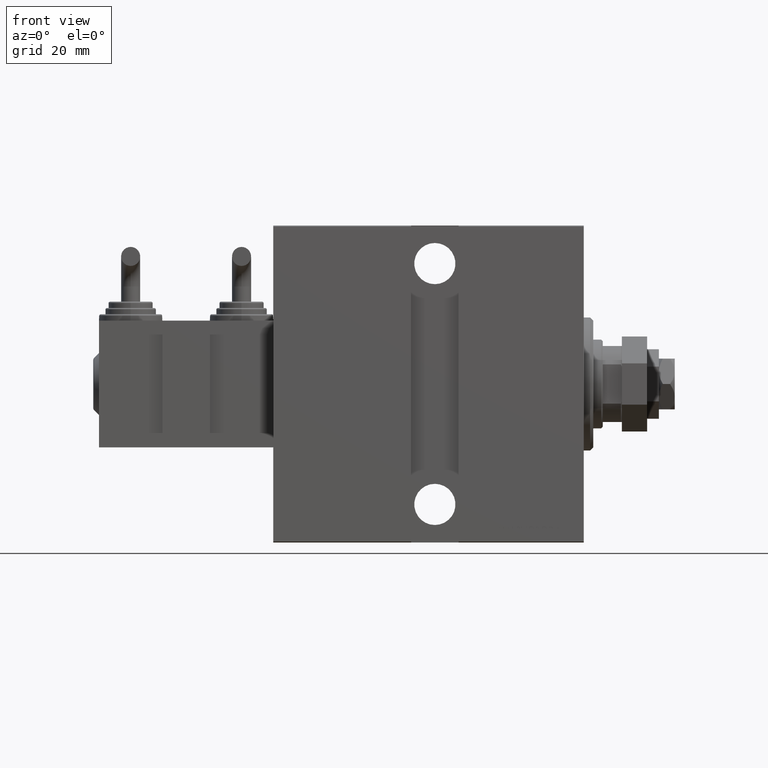
[diagram: clean part render]
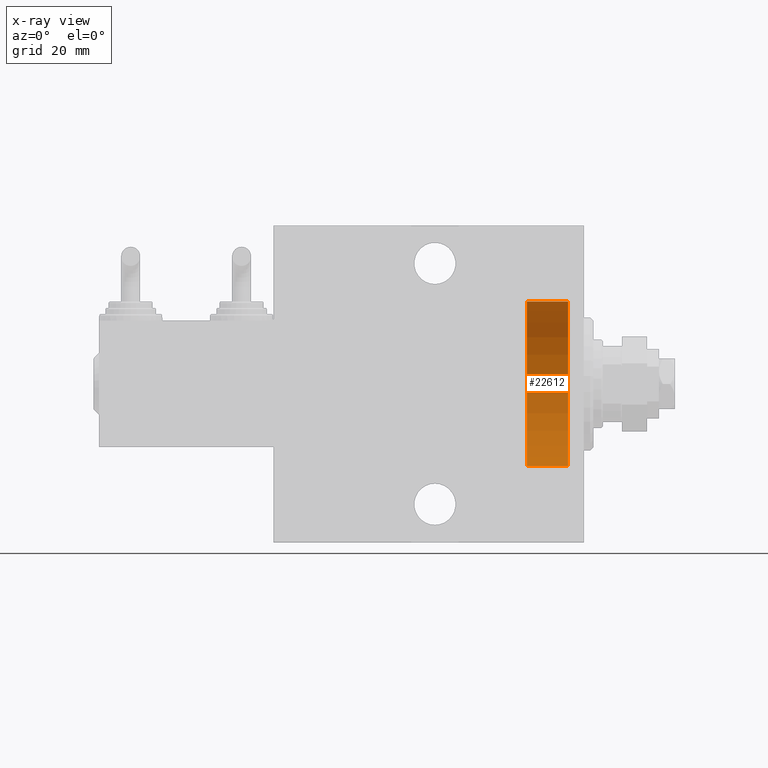
[diagram: x-ray — body ghosted, one internal face saturated and labeled with its STEP entity id]
A machine part, front view, then the same camera in x-ray: the body is ghosted and one INTERNAL B-rep face — a face not visible from any outside direction — is saturated and labeled: STEP entity #22612.
In plain terms, the highlighted cylindrical surface (partial cylindrical patch) has radius 26 mm, axis along (1, 0, 0).
Its self-contained STEP definition (entity closure, byte-faithful):
#3397 = CARTESIAN_POINT ( 'NONE',  ( -5.000000000000000888, 0.000000000000000000, 0.000000000000000000 ) ) ;
#3582 = CARTESIAN_POINT ( 'NONE',  ( -18.00000000000000000, 0.000000000000000000, 0.000000000000000000 ) ) ;
#3893 = ORIENTED_EDGE ( 'NONE', *, *, #17422, .F. ) ;
#5398 = CARTESIAN_POINT ( 'NONE',  ( -18.00000000000000000, 0.000000000000000000, -26.00000000000000355 ) ) ;
#5450 = CIRCLE ( 'NONE', #45273, 26.00000000000000355 ) ;
#5453 = CARTESIAN_POINT ( 'NONE',  ( -18.00000000000000000, 3.184081677783118585E-15, 26.00000000000000355 ) ) ;
#7791 = DIRECTION ( 'NONE',  ( 0.000000000000000000, 0.000000000000000000, -1.000000000000000000 ) ) ;
#11012 = EDGE_CURVE ( 'NONE', #40790, #46493, #26042, .T. ) ;
#12416 = VECTOR ( 'NONE', #35643, 1000.000000000000000 ) ;
#13443 = DIRECTION ( 'NONE',  ( 1.000000000000000000, -0.000000000000000000, -0.000000000000000000 ) ) ;
#14856 = DIRECTION ( 'NONE',  ( 0.000000000000000000, 0.000000000000000000, 1.000000000000000000 ) ) ;
#16695 = EDGE_CURVE ( 'NONE', #46493, #32826, #47762, .T. ) ;
#17024 = EDGE_CURVE ( 'NONE', #40790, #41862, #5450, .T. ) ;
#17422 = EDGE_CURVE ( 'NONE', #41862, #32826, #24370, .T. ) ;
#17893 = AXIS2_PLACEMENT_3D ( 'NONE', #3397, #41149, #7791 ) ;
#18550 = DIRECTION ( 'NONE',  ( -1.000000000000000000, 0.000000000000000000, 0.000000000000000000 ) ) ;
#21720 = VECTOR ( 'NONE', #32687, 1000.000000000000000 ) ;
#22612 = ADVANCED_FACE ( 'NONE', ( #36010 ), #39444, .T. ) ;
#24370 = LINE ( 'NONE', #24611, #12416 ) ;
#24611 = CARTESIAN_POINT ( 'NONE',  ( -18.00000000000000000, 0.000000000000000000, -26.00000000000000355 ) ) ;
#24744 = CARTESIAN_POINT ( 'NONE',  ( -18.00000000000000000, 0.000000000000000000, 0.000000000000000000 ) ) ;
#26042 = LINE ( 'NONE', #43713, #21720 ) ;
#27480 = AXIS2_PLACEMENT_3D ( 'NONE', #24744, #13443, #36255 ) ;
#29300 = ORIENTED_EDGE ( 'NONE', *, *, #11012, .T. ) ;
#31597 = ORIENTED_EDGE ( 'NONE', *, *, #17024, .F. ) ;
#32687 = DIRECTION ( 'NONE',  ( 1.000000000000000000, -0.000000000000000000, -0.000000000000000000 ) ) ;
#32826 = VERTEX_POINT ( 'NONE', #38452 ) ;
#35231 = CARTESIAN_POINT ( 'NONE',  ( -5.000000000000000888, 3.184081677783118585E-15, 26.00000000000000355 ) ) ;
#35643 = DIRECTION ( 'NONE',  ( 1.000000000000000000, -0.000000000000000000, -0.000000000000000000 ) ) ;
#36010 = FACE_OUTER_BOUND ( 'NONE', #38029, .T. ) ;
#36255 = DIRECTION ( 'NONE',  ( 0.000000000000000000, 0.000000000000000000, -1.000000000000000000 ) ) ;
#38029 = EDGE_LOOP ( 'NONE', ( #31597, #29300, #39077, #3893 ) ) ;
#38452 = CARTESIAN_POINT ( 'NONE',  ( -5.000000000000000888, 0.000000000000000000, -26.00000000000000355 ) ) ;
#39077 = ORIENTED_EDGE ( 'NONE', *, *, #16695, .T. ) ;
#39444 = CYLINDRICAL_SURFACE ( 'NONE', #27480, 26.00000000000000355 ) ;
#40790 = VERTEX_POINT ( 'NONE', #5453 ) ;
#41149 = DIRECTION ( 'NONE',  ( -1.000000000000000000, -0.000000000000000000, -0.000000000000000000 ) ) ;
#41862 = VERTEX_POINT ( 'NONE', #5398 ) ;
#43713 = CARTESIAN_POINT ( 'NONE',  ( -18.00000000000000000, 3.184081677783118585E-15, 26.00000000000000355 ) ) ;
#45273 = AXIS2_PLACEMENT_3D ( 'NONE', #3582, #18550, #14856 ) ;
#46493 = VERTEX_POINT ( 'NONE', #35231 ) ;
#47762 = CIRCLE ( 'NONE', #17893, 26.00000000000000355 ) ;